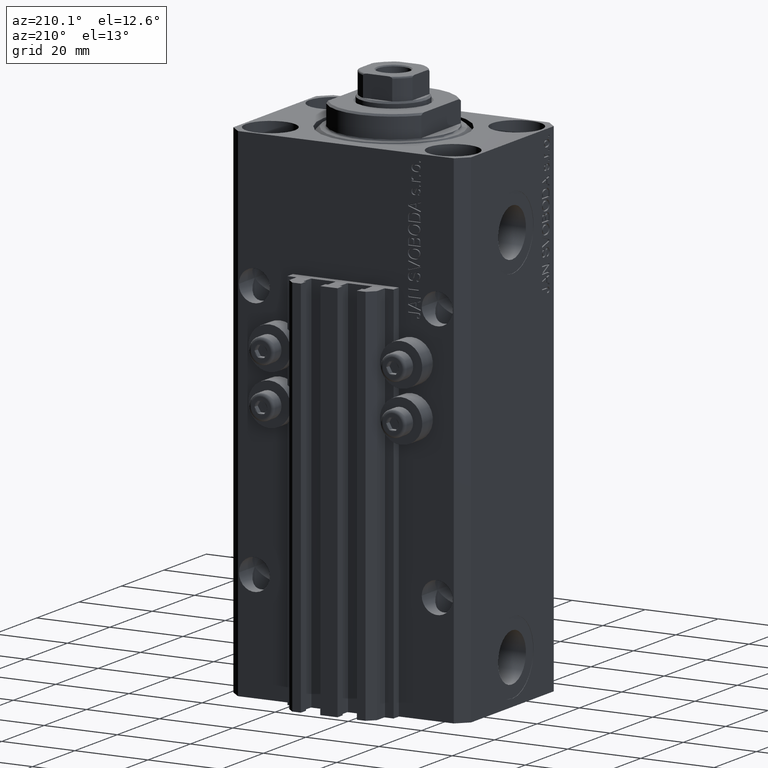
[diagram: clean part render]
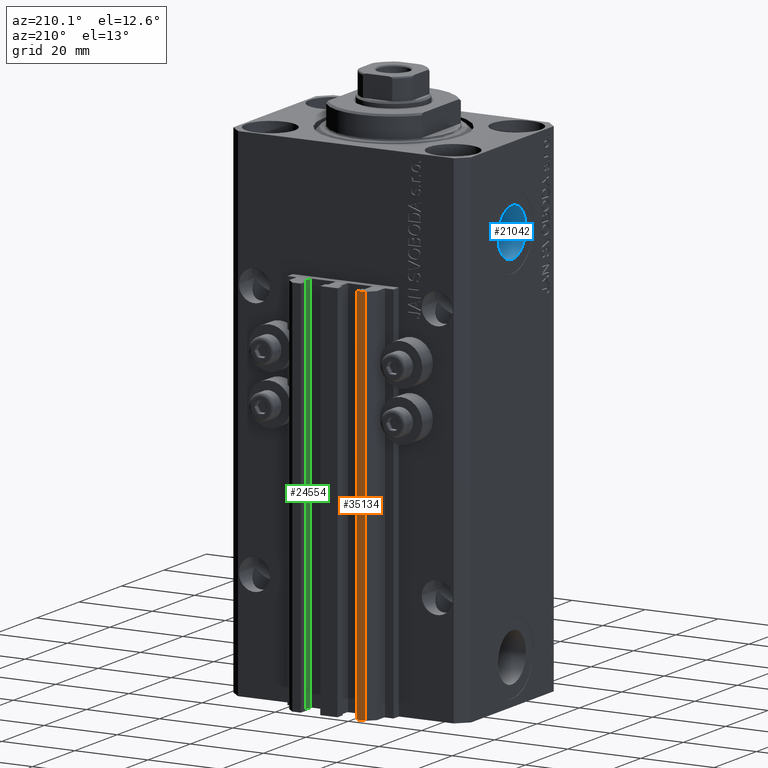
[diagram: same view with three faces highlighted in distinct colors, each labeled with its STEP entity id]
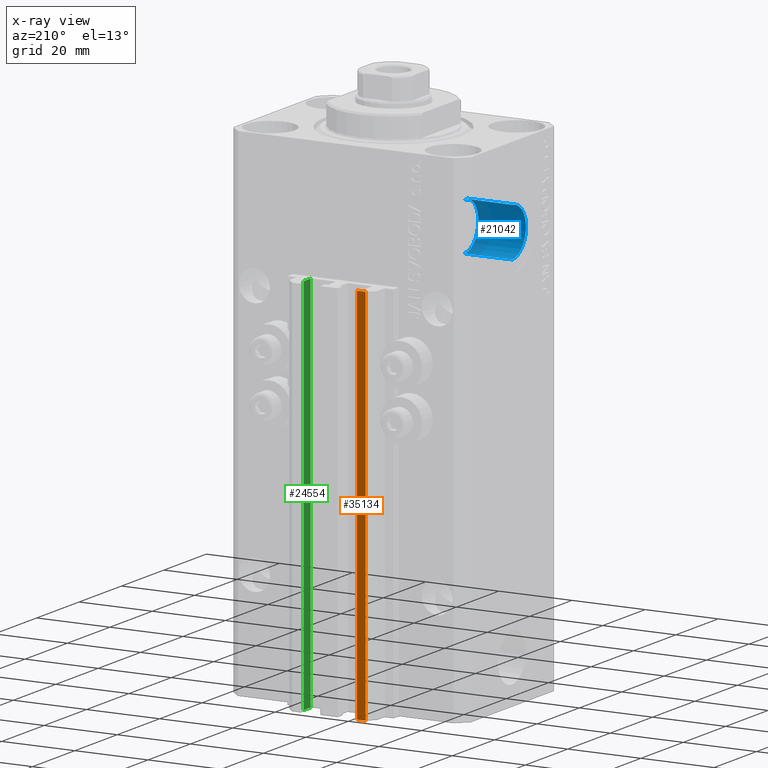
[diagram: x-ray of the same camera — body ghosted, the three highlighted faces saturated]
A machine part, auxiliary view with three faces highlighted in distinct colors.
The next image is the same camera in x-ray (body ghosted, the three faces saturated) — at least one of them is partly hidden behind the body in this view.
Their STEP definitions:

[orange] entity #35134 — the highlighted planar face has unit normal (0, 1, 0).
#1827 = CARTESIAN_POINT ( 'NONE',  ( -10.00000000000000000, 30.49999999999948841, -137.0000000000000000 ) ) ;
#3736 = EDGE_CURVE ( 'NONE', #8221, #30146, #9670, .T. ) ;
#4380 = ORIENTED_EDGE ( 'NONE', *, *, #9754, .F. ) ;
#5177 = LINE ( 'NONE', #35178, #43830 ) ;
#6516 = DIRECTION ( 'NONE',  ( 1.476360405086645049E-15, 1.000000000000000000, -0.000000000000000000 ) ) ;
#8189 = VECTOR ( 'NONE', #30984, 1000.000000000000000 ) ;
#8221 = VERTEX_POINT ( 'NONE', #15211 ) ;
#9670 = LINE ( 'NONE', #43307, #34816 ) ;
#9754 = EDGE_CURVE ( 'NONE', #41186, #8221, #12690, .T. ) ;
#12690 = LINE ( 'NONE', #23428, #8189 ) ;
#15211 = CARTESIAN_POINT ( 'NONE',  ( -7.650000000000000355, 30.49999999999948486, -33.00000000000000000 ) ) ;
#15280 = AXIS2_PLACEMENT_3D ( 'NONE', #35530, #6516, #36262 ) ;
#15529 = VERTEX_POINT ( 'NONE', #22223 ) ;
#16702 = DIRECTION ( 'NONE',  ( 0.000000000000000000, 0.000000000000000000, 1.000000000000000000 ) ) ;
#18697 = VECTOR ( 'NONE', #16702, 1000.000000000000000 ) ;
#19665 = ORIENTED_EDGE ( 'NONE', *, *, #43979, .T. ) ;
#22223 = CARTESIAN_POINT ( 'NONE',  ( -10.00000000000000000, 30.49999999999948841, -137.0000000000000000 ) ) ;
#23428 = CARTESIAN_POINT ( 'NONE',  ( -7.650000000000000355, 30.49999999999948486, -137.0000000000000000 ) ) ;
#24329 = PLANE ( 'NONE',  #15280 ) ;
#24546 = DIRECTION ( 'NONE',  ( -1.000000000000000000, 1.476360405086644852E-15, 0.000000000000000000 ) ) ;
#29919 = EDGE_LOOP ( 'NONE', ( #31437, #4380, #33650, #19665 ) ) ;
#30146 = VERTEX_POINT ( 'NONE', #37647 ) ;
#30801 = DIRECTION ( 'NONE',  ( -1.000000000000000000, 1.476360405086644852E-15, 0.000000000000000000 ) ) ;
#30984 = DIRECTION ( 'NONE',  ( 0.000000000000000000, 0.000000000000000000, 1.000000000000000000 ) ) ;
#31437 = ORIENTED_EDGE ( 'NONE', *, *, #3736, .F. ) ;
#33650 = ORIENTED_EDGE ( 'NONE', *, *, #34404, .T. ) ;
#34404 = EDGE_CURVE ( 'NONE', #41186, #15529, #5177, .T. ) ;
#34816 = VECTOR ( 'NONE', #24546, 1000.000000000000000 ) ;
#35134 = ADVANCED_FACE ( 'NONE', ( #38956 ), #24329, .T. ) ;
#35178 = CARTESIAN_POINT ( 'NONE',  ( -7.650000000000000355, 30.49999999999948486, -137.0000000000000000 ) ) ;
#35246 = LINE ( 'NONE', #1827, #18697 ) ;
#35530 = CARTESIAN_POINT ( 'NONE',  ( -7.650000000000000355, 30.49999999999948486, -137.0000000000000000 ) ) ;
#36262 = DIRECTION ( 'NONE',  ( -1.000000000000000000, 1.476360405086645049E-15, 0.000000000000000000 ) ) ;
#37180 = CARTESIAN_POINT ( 'NONE',  ( -7.650000000000000355, 30.49999999999948486, -137.0000000000000000 ) ) ;
#37647 = CARTESIAN_POINT ( 'NONE',  ( -10.00000000000000000, 30.49999999999948841, -33.00000000000000000 ) ) ;
#38956 = FACE_OUTER_BOUND ( 'NONE', #29919, .T. ) ;
#41186 = VERTEX_POINT ( 'NONE', #37180 ) ;
#43307 = CARTESIAN_POINT ( 'NONE',  ( -7.650000000000000355, 30.49999999999948486, -33.00000000000000000 ) ) ;
#43830 = VECTOR ( 'NONE', #30801, 1000.000000000000000 ) ;
#43979 = EDGE_CURVE ( 'NONE', #15529, #30146, #35246, .T. ) ;

[blue] entity #21042 — the highlighted cylindrical surface (edge-blend (fillet) strip) has radius 6.58 mm, axis along (-1, -0, -0).
#384 = DIRECTION ( 'NONE',  ( -1.000000000000000000, -0.000000000000000000, -0.000000000000000000 ) ) ;
#725 = ORIENTED_EDGE ( 'NONE', *, *, #34555, .F. ) ;
#881 = VERTEX_POINT ( 'NONE', #29925 ) ;
#2345 = CARTESIAN_POINT ( 'NONE',  ( -32.39999999999650271, 0.000000000000000000, -22.00000000000000000 ) ) ;
#3433 = DIRECTION ( 'NONE',  ( -1.000000000000000000, 0.000000000000000000, 0.000000000000000000 ) ) ;
#4808 = CARTESIAN_POINT ( 'NONE',  ( -19.39999999999650271, 0.000000000000000000, -22.00000000000000000 ) ) ;
#5669 = CARTESIAN_POINT ( 'NONE',  ( -19.39999999999650271, 8.058175938389580558E-16, -28.57999999999999829 ) ) ;
#6231 = ORIENTED_EDGE ( 'NONE', *, *, #41355, .F. ) ;
#6400 = ORIENTED_EDGE ( 'NONE', *, *, #20627, .T. ) ;
#6514 = ORIENTED_EDGE ( 'NONE', *, *, #41415, .T. ) ;
#9970 = CARTESIAN_POINT ( 'NONE',  ( -32.39999999999650271, 0.000000000000000000, -15.41999999999999993 ) ) ;
#12116 = DIRECTION ( 'NONE',  ( -1.000000000000000000, -0.000000000000000000, -0.000000000000000000 ) ) ;
#13182 = VECTOR ( 'NONE', #12116, 1000.000000000000000 ) ;
#15762 = CIRCLE ( 'NONE', #21254, 6.579999999999999183 ) ;
#16732 = DIRECTION ( 'NONE',  ( -1.000000000000000000, 0.000000000000000000, 0.000000000000000000 ) ) ;
#17076 = AXIS2_PLACEMENT_3D ( 'NONE', #2345, #16732, #20414 ) ;
#17309 = VERTEX_POINT ( 'NONE', #9970 ) ;
#20414 = DIRECTION ( 'NONE',  ( 0.000000000000000000, 0.000000000000000000, 1.000000000000000000 ) ) ;
#20627 = EDGE_CURVE ( 'NONE', #45675, #881, #46401, .T. ) ;
#20997 = CIRCLE ( 'NONE', #17076, 6.579999999999999183 ) ;
#21042 = ADVANCED_FACE ( 'NONE', ( #34568 ), #38225, .F. ) ;
#21254 = AXIS2_PLACEMENT_3D ( 'NONE', #21994, #3433, #33187 ) ;
#21994 = CARTESIAN_POINT ( 'NONE',  ( -19.39999999999650271, 0.000000000000000000, -22.00000000000000000 ) ) ;
#24683 = CARTESIAN_POINT ( 'NONE',  ( -19.39999999999650271, 8.058175938389579572E-16, -28.57999999999999829 ) ) ;
#24812 = AXIS2_PLACEMENT_3D ( 'NONE', #4808, #384, #45036 ) ;
#26754 = LINE ( 'NONE', #46017, #13182 ) ;
#29846 = VERTEX_POINT ( 'NONE', #39157 ) ;
#29925 = CARTESIAN_POINT ( 'NONE',  ( -32.39999999999650271, 8.058175938389579572E-16, -28.57999999999999829 ) ) ;
#33187 = DIRECTION ( 'NONE',  ( 0.000000000000000000, 0.000000000000000000, 1.000000000000000000 ) ) ;
#34555 = EDGE_CURVE ( 'NONE', #45675, #29846, #15762, .T. ) ;
#34568 = FACE_OUTER_BOUND ( 'NONE', #44750, .T. ) ;
#38225 = CYLINDRICAL_SURFACE ( 'NONE', #24812, 6.579999999999999183 ) ;
#39157 = CARTESIAN_POINT ( 'NONE',  ( -19.39999999999650271, 0.000000000000000000, -15.41999999999999993 ) ) ;
#41355 = EDGE_CURVE ( 'NONE', #29846, #17309, #26754, .T. ) ;
#41415 = EDGE_CURVE ( 'NONE', #881, #17309, #20997, .T. ) ;
#42732 = DIRECTION ( 'NONE',  ( -1.000000000000000000, -0.000000000000000000, -0.000000000000000000 ) ) ;
#44750 = EDGE_LOOP ( 'NONE', ( #725, #6400, #6514, #6231 ) ) ;
#45036 = DIRECTION ( 'NONE',  ( 0.000000000000000000, 0.000000000000000000, 1.000000000000000000 ) ) ;
#45675 = VERTEX_POINT ( 'NONE', #24683 ) ;
#45892 = VECTOR ( 'NONE', #42732, 1000.000000000000000 ) ;
#46017 = CARTESIAN_POINT ( 'NONE',  ( -19.39999999999650271, 0.000000000000000000, -15.41999999999999993 ) ) ;
#46401 = LINE ( 'NONE', #5669, #45892 ) ;

[green] entity #24554 — the highlighted planar face has unit normal (-1, 0, 0).
#4049 = EDGE_CURVE ( 'NONE', #15378, #10487, #39363, .T. ) ;
#5016 = CARTESIAN_POINT ( 'NONE',  ( 8.400000000000000355, 27.89999999999950475, -137.0000000000000000 ) ) ;
#6202 = LINE ( 'NONE', #25228, #43489 ) ;
#6446 = DIRECTION ( 'NONE',  ( -5.421010862427496532E-16, -1.000000000000000000, 0.000000000000000000 ) ) ;
#8436 = FACE_OUTER_BOUND ( 'NONE', #31027, .T. ) ;
#10258 = EDGE_CURVE ( 'NONE', #10487, #33159, #27980, .T. ) ;
#10487 = VERTEX_POINT ( 'NONE', #39622 ) ;
#11328 = ORIENTED_EDGE ( 'NONE', *, *, #18102, .T. ) ;
#12092 = VECTOR ( 'NONE', #46755, 1000.000000000000000 ) ;
#14454 = CARTESIAN_POINT ( 'NONE',  ( 8.400000000000000355, 24.69999999999949125, -137.0000000000000000 ) ) ;
#15378 = VERTEX_POINT ( 'NONE', #45922 ) ;
#15661 = CARTESIAN_POINT ( 'NONE',  ( 8.400000000000000355, 24.69999999999949125, -137.0000000000000000 ) ) ;
#18102 = EDGE_CURVE ( 'NONE', #15378, #42050, #6202, .T. ) ;
#24554 = ADVANCED_FACE ( 'NONE', ( #8436 ), #35017, .T. ) ;
#24989 = CARTESIAN_POINT ( 'NONE',  ( 8.400000000000000355, 27.89999999999950475, -137.0000000000000000 ) ) ;
#25228 = CARTESIAN_POINT ( 'NONE',  ( 8.400000000000000355, 27.89999999999950475, -137.0000000000000000 ) ) ;
#27688 = DIRECTION ( 'NONE',  ( -1.000000000000000000, 5.421010862427497518E-16, 0.000000000000000000 ) ) ;
#27980 = LINE ( 'NONE', #32367, #12092 ) ;
#31027 = EDGE_LOOP ( 'NONE', ( #32246, #35384, #11328, #37837 ) ) ;
#31124 = DIRECTION ( 'NONE',  ( -5.421010862427497518E-16, -1.000000000000000000, 0.000000000000000000 ) ) ;
#32213 = VECTOR ( 'NONE', #41259, 1000.000000000000000 ) ;
#32246 = ORIENTED_EDGE ( 'NONE', *, *, #10258, .F. ) ;
#32298 = DIRECTION ( 'NONE',  ( 0.000000000000000000, 0.000000000000000000, 1.000000000000000000 ) ) ;
#32367 = CARTESIAN_POINT ( 'NONE',  ( 8.400000000000000355, 27.89999999999950475, -33.00000000000000000 ) ) ;
#32407 = EDGE_CURVE ( 'NONE', #42050, #33159, #33711, .T. ) ;
#33159 = VERTEX_POINT ( 'NONE', #37661 ) ;
#33711 = LINE ( 'NONE', #15661, #32213 ) ;
#35017 = PLANE ( 'NONE',  #35032 ) ;
#35032 = AXIS2_PLACEMENT_3D ( 'NONE', #5016, #27688, #31124 ) ;
#35384 = ORIENTED_EDGE ( 'NONE', *, *, #4049, .F. ) ;
#37661 = CARTESIAN_POINT ( 'NONE',  ( 8.400000000000000355, 24.69999999999949125, -33.00000000000000000 ) ) ;
#37837 = ORIENTED_EDGE ( 'NONE', *, *, #32407, .T. ) ;
#39363 = LINE ( 'NONE', #24989, #41008 ) ;
#39622 = CARTESIAN_POINT ( 'NONE',  ( 8.400000000000000355, 27.89999999999950475, -33.00000000000000000 ) ) ;
#41008 = VECTOR ( 'NONE', #32298, 1000.000000000000000 ) ;
#41259 = DIRECTION ( 'NONE',  ( 0.000000000000000000, 0.000000000000000000, 1.000000000000000000 ) ) ;
#42050 = VERTEX_POINT ( 'NONE', #14454 ) ;
#43489 = VECTOR ( 'NONE', #6446, 1000.000000000000000 ) ;
#45922 = CARTESIAN_POINT ( 'NONE',  ( 8.400000000000000355, 27.89999999999950475, -137.0000000000000000 ) ) ;
#46755 = DIRECTION ( 'NONE',  ( -5.421010862427496532E-16, -1.000000000000000000, 0.000000000000000000 ) ) ;